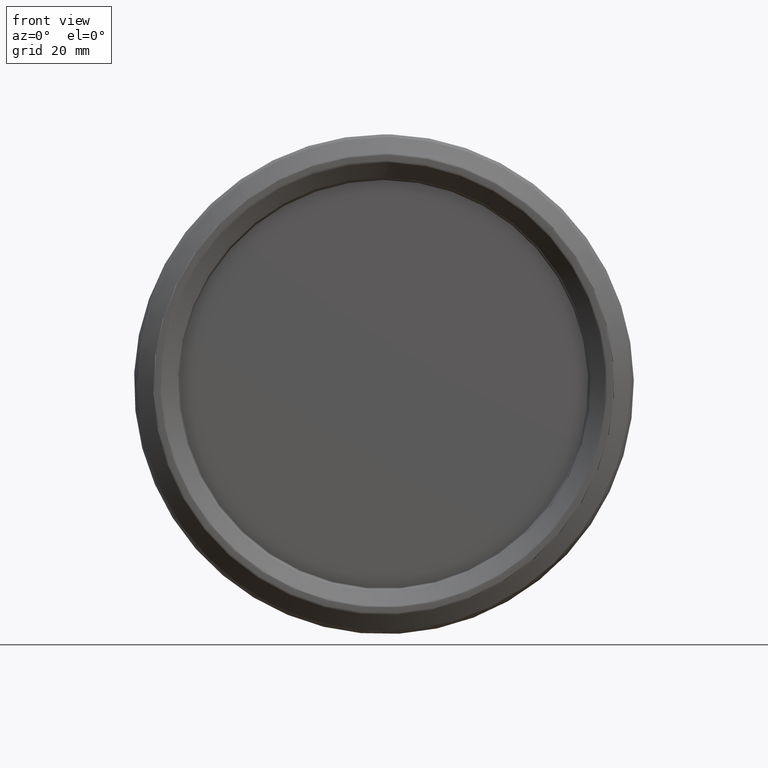
[diagram: clean part render]
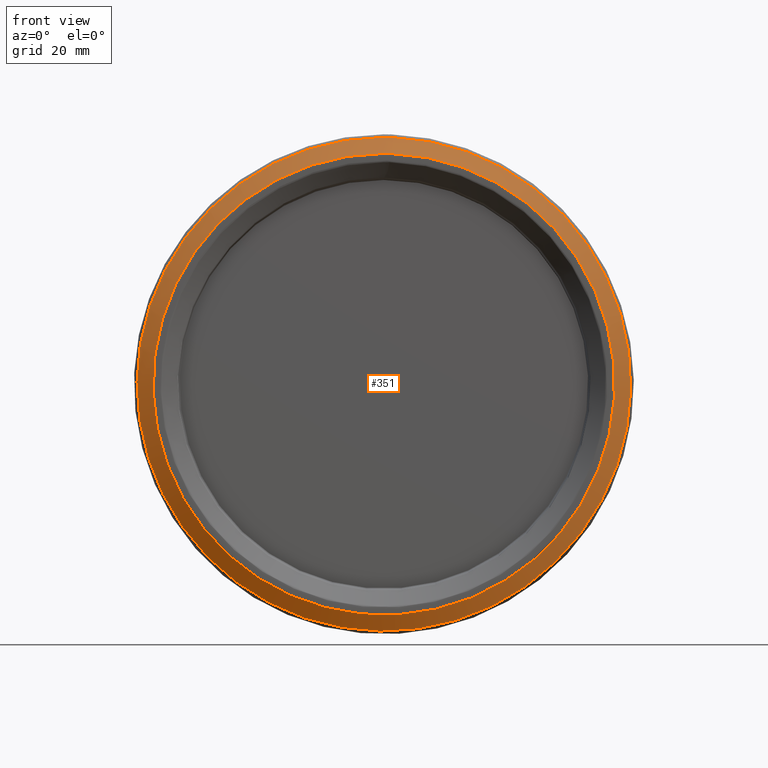
[diagram: same view with one face highlighted and labeled with its STEP entity id]
A machine part, front view. The second image highlights one B-rep face of the part: STEP entity #351.
In plain terms, the highlighted face is a SurfaceOfRevolution surface.
Its self-contained STEP definition (entity closure, byte-faithful):
#111=SURFACE_OF_REVOLUTION('',#239,#132);
#132=AXIS1_PLACEMENT('',#1875,#1345);
#239=B_SPLINE_CURVE_WITH_KNOTS('',3,(#1870,#1871,#1872,#1873,#1874),
 .UNSPECIFIED.,.F.,.F.,(4,1,4),(0.,0.5,1.),.UNSPECIFIED.);
#351=ADVANCED_FACE('',(#433,#434),#111,.T.);
#433=FACE_BOUND('',#540,.T.);
#434=FACE_BOUND('',#541,.T.);
#540=EDGE_LOOP('',(#756));
#541=EDGE_LOOP('',(#757));
#756=ORIENTED_EDGE('',*,*,#966,.F.);
#757=ORIENTED_EDGE('',*,*,#965,.T.);
#857=VERTEX_POINT('',#1861);
#858=VERTEX_POINT('',#1869);
#965=EDGE_CURVE('',#857,#857,#1021,.T.);
#966=EDGE_CURVE('',#858,#858,#1022,.T.);
#1021=CIRCLE('',#1121,76.6433374571118);
#1022=CIRCLE('',#1122,81.9553370193821);
#1121=AXIS2_PLACEMENT_3D('',#1860,#1340,#1341);
#1122=AXIS2_PLACEMENT_3D('',#1868,#1343,#1344);
#1340=DIRECTION('',(0.,1.,0.));
#1341=DIRECTION('',(0.,0.,1.));
#1343=DIRECTION('',(0.,1.,0.));
#1344=DIRECTION('',(0.,0.,1.));
#1345=DIRECTION('',(0.,1.,0.));
#1860=CARTESIAN_POINT('',(0.,0.158495688308788,0.));
#1861=CARTESIAN_POINT('',(0.,0.158495688308788,76.6433374571118));
#1868=CARTESIAN_POINT('',(0.,3.88814716118068,0.));
#1869=CARTESIAN_POINT('',(0.,3.88814716118068,81.9553370193821));
#1870=CARTESIAN_POINT('',(75.8054749836273,0.15849568830878,11.3018201662991));
#1871=CARTESIAN_POINT('',(76.6772712841419,0.800922807726069,11.1887521838731));
#1872=CARTESIAN_POINT('',(78.4514855407953,2.07933352021593,11.1650519246225));
#1873=CARTESIAN_POINT('',(80.2257595670061,3.30173213723459,11.5402040726114));
#1874=CARTESIAN_POINT('',(81.0976156370783,3.88814716118068,11.8259884974247));
#1875=CARTESIAN_POINT('',(0.,0.,0.));